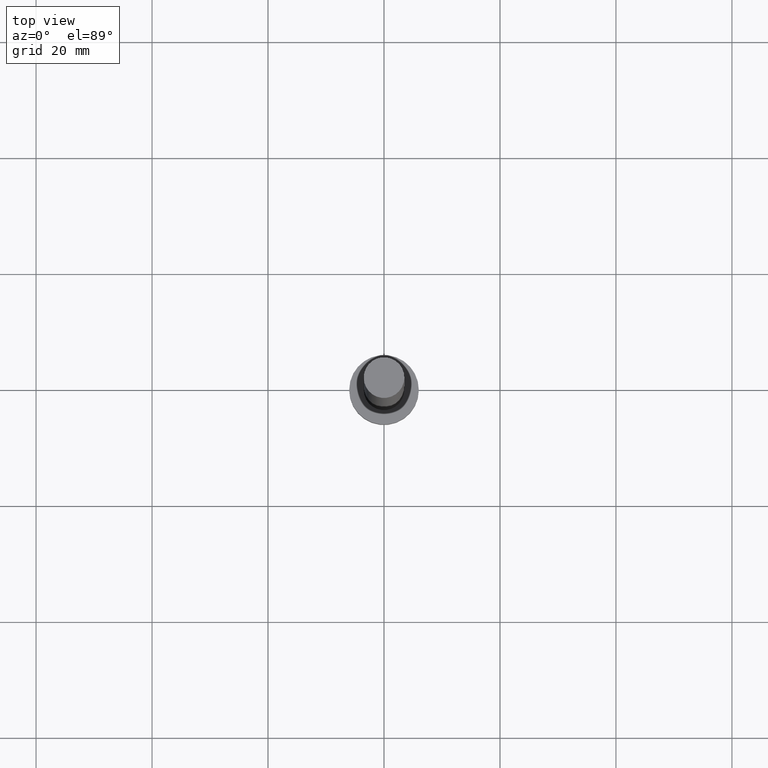
[diagram: clean part render]
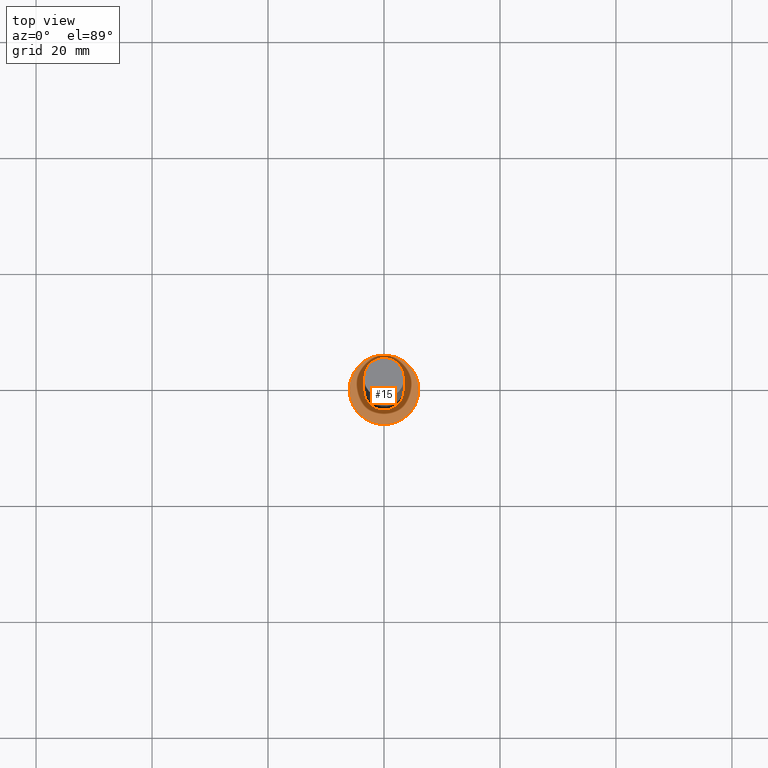
[diagram: same view with one face highlighted and labeled with its STEP entity id]
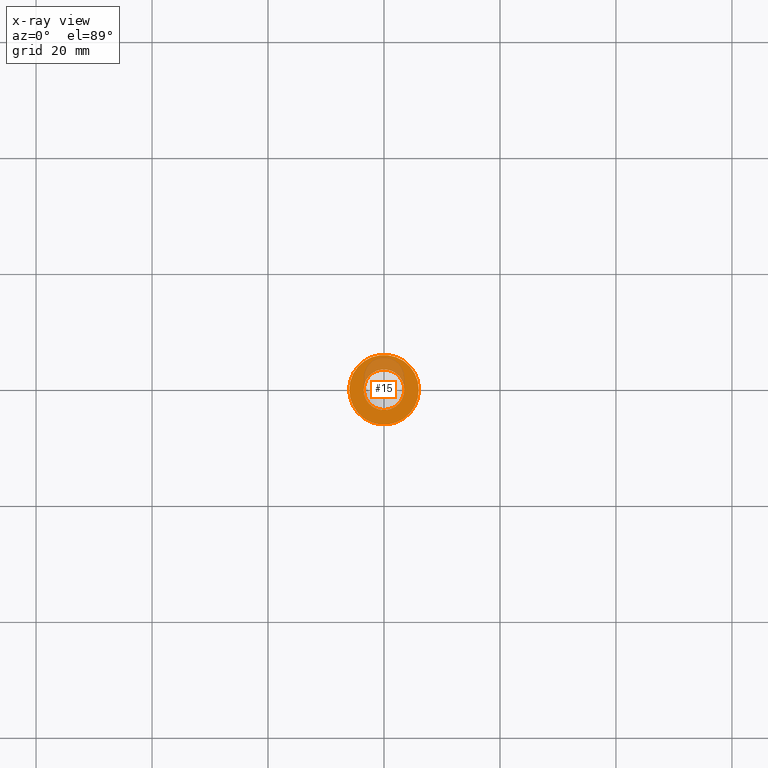
[diagram: x-ray of the same camera — body ghosted, the highlighted face saturated]
A machine part, top view. The second image highlights one B-rep face of the part: STEP entity #15.
The next image is the same camera in x-ray: the body ghosted, the highlighted face saturated — about 20% of this face is hidden behind the body in this view.
In plain terms, the highlighted planar face has unit normal (0, 0, 1).
Its self-contained STEP definition (entity closure, byte-faithful):
#12 = AXIS2_PLACEMENT_3D ( 'NONE', #127, #220, #113 ) ;
#14 = CARTESIAN_POINT ( 'NONE',  ( 0.000000000000000000, 0.000000000000000000, 5.000000000000000000 ) ) ;
#15 = ADVANCED_FACE ( 'NONE', ( #208, #239 ), #223, .T. ) ;
#26 = EDGE_LOOP ( 'NONE', ( #92, #86 ) ) ;
#29 = EDGE_CURVE ( 'NONE', #155, #213, #203, .T. ) ;
#32 = VERTEX_POINT ( 'NONE', #226 ) ;
#33 = ORIENTED_EDGE ( 'NONE', *, *, #211, .F. ) ;
#39 = EDGE_CURVE ( 'NONE', #32, #214, #194, .T. ) ;
#45 = EDGE_LOOP ( 'NONE', ( #184, #33 ) ) ;
#51 = DIRECTION ( 'NONE',  ( 1.000000000000000000, 0.000000000000000000, 0.000000000000000000 ) ) ;
#59 = AXIS2_PLACEMENT_3D ( 'NONE', #165, #202, #206 ) ;
#65 = CIRCLE ( 'NONE', #159, 3.500000000000000000 ) ;
#70 = DIRECTION ( 'NONE',  ( 0.000000000000000000, 0.000000000000000000, 1.000000000000000000 ) ) ;
#86 = ORIENTED_EDGE ( 'NONE', *, *, #29, .T. ) ;
#92 = ORIENTED_EDGE ( 'NONE', *, *, #232, .T. ) ;
#97 = DIRECTION ( 'NONE',  ( 0.000000000000000000, 0.000000000000000000, 1.000000000000000000 ) ) ;
#106 = CIRCLE ( 'NONE', #130, 6.000000000000000888 ) ;
#110 = CARTESIAN_POINT ( 'NONE',  ( 0.000000000000000000, 0.000000000000000000, 5.000000000000000000 ) ) ;
#113 = DIRECTION ( 'NONE',  ( 1.000000000000000000, 0.000000000000000000, 0.000000000000000000 ) ) ;
#116 = CARTESIAN_POINT ( 'NONE',  ( -6.000000000000000888, 0.000000000000000000, 5.000000000000000000 ) ) ;
#127 = CARTESIAN_POINT ( 'NONE',  ( 0.000000000000000000, 0.000000000000000000, 5.000000000000000000 ) ) ;
#130 = AXIS2_PLACEMENT_3D ( 'NONE', #248, #250, #174 ) ;
#139 = DIRECTION ( 'NONE',  ( 1.000000000000000000, 0.000000000000000000, 0.000000000000000000 ) ) ;
#155 = VERTEX_POINT ( 'NONE', #228 ) ;
#159 = AXIS2_PLACEMENT_3D ( 'NONE', #14, #97, #139 ) ;
#165 = CARTESIAN_POINT ( 'NONE',  ( 0.000000000000000000, 0.000000000000000000, 5.000000000000000000 ) ) ;
#174 = DIRECTION ( 'NONE',  ( 1.000000000000000000, 0.000000000000000000, 0.000000000000000000 ) ) ;
#176 = AXIS2_PLACEMENT_3D ( 'NONE', #110, #70, #51 ) ;
#184 = ORIENTED_EDGE ( 'NONE', *, *, #39, .F. ) ;
#192 = CARTESIAN_POINT ( 'NONE',  ( 3.500000000000000000, 4.286263797015736595E-16, 5.000000000000000000 ) ) ;
#194 = CIRCLE ( 'NONE', #176, 3.500000000000000000 ) ;
#202 = DIRECTION ( 'NONE',  ( 0.000000000000000000, 0.000000000000000000, 1.000000000000000000 ) ) ;
#203 = CIRCLE ( 'NONE', #12, 6.000000000000000888 ) ;
#206 = DIRECTION ( 'NONE',  ( 1.000000000000000000, 0.000000000000000000, -0.000000000000000000 ) ) ;
#208 = FACE_BOUND ( 'NONE', #45, .T. ) ;
#211 = EDGE_CURVE ( 'NONE', #214, #32, #65, .T. ) ;
#213 = VERTEX_POINT ( 'NONE', #116 ) ;
#214 = VERTEX_POINT ( 'NONE', #192 ) ;
#220 = DIRECTION ( 'NONE',  ( 0.000000000000000000, 0.000000000000000000, 1.000000000000000000 ) ) ;
#223 = PLANE ( 'NONE',  #59 ) ;
#226 = CARTESIAN_POINT ( 'NONE',  ( -3.500000000000000000, 0.000000000000000000, 5.000000000000000000 ) ) ;
#228 = CARTESIAN_POINT ( 'NONE',  ( 6.000000000000000888, 7.347880794884120722E-16, 5.000000000000000000 ) ) ;
#232 = EDGE_CURVE ( 'NONE', #213, #155, #106, .T. ) ;
#239 = FACE_OUTER_BOUND ( 'NONE', #26, .T. ) ;
#248 = CARTESIAN_POINT ( 'NONE',  ( 0.000000000000000000, 0.000000000000000000, 5.000000000000000000 ) ) ;
#250 = DIRECTION ( 'NONE',  ( 0.000000000000000000, 0.000000000000000000, 1.000000000000000000 ) ) ;